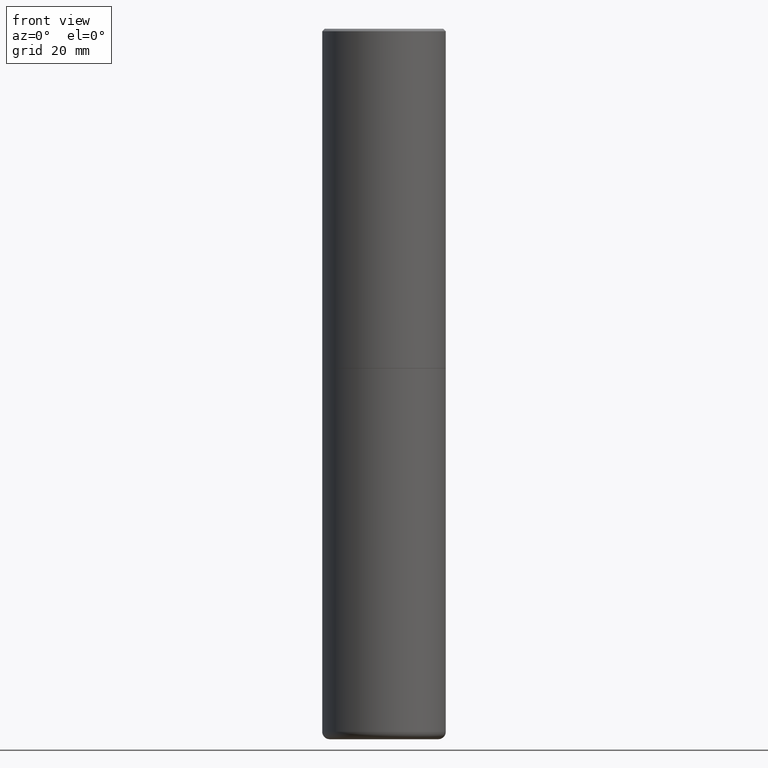
[diagram: clean part render]
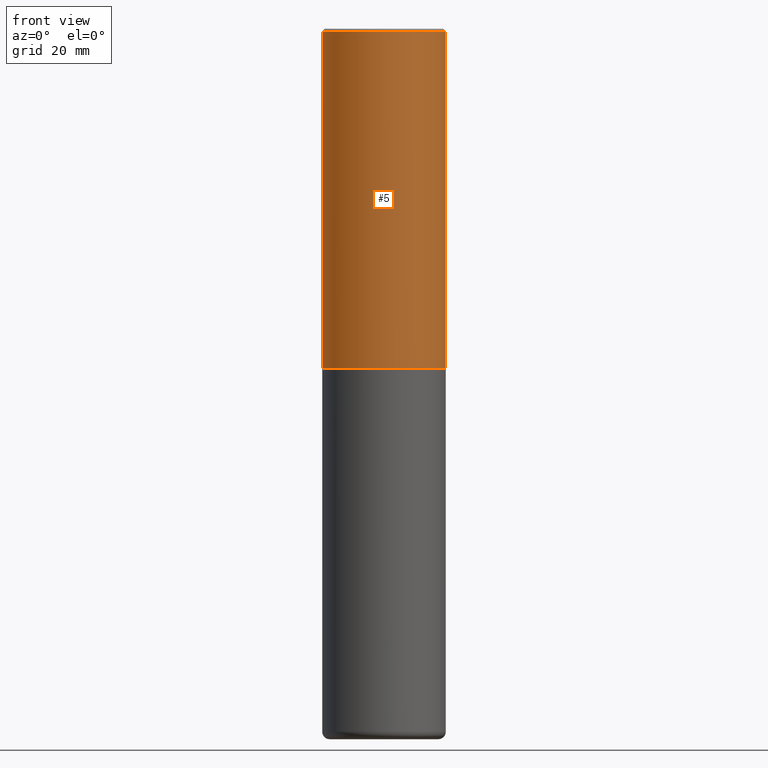
[diagram: same view with one face highlighted and labeled with its STEP entity id]
A machine part, front view. The second image highlights one B-rep face of the part: STEP entity #5.
In plain terms, the highlighted cylindrical surface (partial cylindrical patch) has radius 12.7 mm, axis along (-0, 0, 1).
Its self-contained STEP definition (entity closure, byte-faithful):
#5 = ADVANCED_FACE ( 'NONE', ( #139 ), #133, .T. ) ;
#16 = CARTESIAN_POINT ( 'NONE',  ( 0.000000000000000000, 0.000000000000000000, 0.000000000000000000 ) ) ;
#22 = ORIENTED_EDGE ( 'NONE', *, *, #161, .T. ) ;
#39 = EDGE_CURVE ( 'NONE', #120, #331, #227, .T. ) ;
#42 = CARTESIAN_POINT ( 'NONE',  ( -0.5000000000000003331, -1.281242234827830793E-15, -2.748999999999999666 ) ) ;
#46 = AXIS2_PLACEMENT_3D ( 'NONE', #16, #275, #131 ) ;
#58 = CARTESIAN_POINT ( 'NONE',  ( -0.5000000000000001110, 3.421651712066270452E-15, -0.02000000000000010797 ) ) ;
#78 = AXIS2_PLACEMENT_3D ( 'NONE', #121, #118, #383 ) ;
#93 = CARTESIAN_POINT ( 'NONE',  ( -0.5000000000000002220, 3.552713678800502507E-15, -2.459467545127454012E-29 ) ) ;
#103 = DIRECTION ( 'NONE',  ( -2.445468806185136877E-29, 3.491481338843145188E-15, 1.000000000000000000 ) ) ;
#115 = EDGE_LOOP ( 'NONE', ( #184, #333, #22, #200 ) ) ;
#118 = DIRECTION ( 'NONE',  ( -2.445468806185136597E-29, 3.491481338843145583E-15, 1.000000000000000000 ) ) ;
#120 = VERTEX_POINT ( 'NONE', #42 ) ;
#121 = CARTESIAN_POINT ( 'NONE',  ( 4.890937612370299433E-31, -6.982962677686328587E-17, -0.02000000000000010797 ) ) ;
#131 = DIRECTION ( 'NONE',  ( 1.000000000000000000, -6.982962677686266711E-15, 4.876176775795935793E-29 ) ) ;
#133 = CYLINDRICAL_SURFACE ( 'NONE', #46, 0.5000000000000002220 ) ;
#139 = FACE_OUTER_BOUND ( 'NONE', #115, .T. ) ;
#161 = EDGE_CURVE ( 'NONE', #331, #211, #190, .T. ) ;
#176 = EDGE_CURVE ( 'NONE', #278, #211, #215, .T. ) ;
#184 = ORIENTED_EDGE ( 'NONE', *, *, #325, .F. ) ;
#185 = CARTESIAN_POINT ( 'NONE',  ( 0.5000000000000001110, -3.500078625662629868E-15, -0.02000000000000010797 ) ) ;
#190 = LINE ( 'NONE', #252, #274 ) ;
#200 = ORIENTED_EDGE ( 'NONE', *, *, #176, .F. ) ;
#211 = VERTEX_POINT ( 'NONE', #185 ) ;
#215 = CIRCLE ( 'NONE', #78, 0.5000000000000001110 ) ;
#227 = CIRCLE ( 'NONE', #236, 0.5000000000000003331 ) ;
#230 = DIRECTION ( 'NONE',  ( -2.445468806185136597E-29, 3.491481338843145583E-15, 1.000000000000000000 ) ) ;
#236 = AXIS2_PLACEMENT_3D ( 'NONE', #264, #230, #336 ) ;
#252 = CARTESIAN_POINT ( 'NONE',  ( 0.5000000000000002220, -3.491481338843134933E-15, 2.438088387897969017E-29 ) ) ;
#254 = VECTOR ( 'NONE', #103, 39.37007874015748143 ) ;
#264 = CARTESIAN_POINT ( 'NONE',  ( 6.722593748202938917E-29, -9.598082200479805274E-15, -2.748999999999999666 ) ) ;
#274 = VECTOR ( 'NONE', #279, 39.37007874015748143 ) ;
#275 = DIRECTION ( 'NONE',  ( -2.445468806185136597E-29, 3.491481338843145583E-15, 1.000000000000000000 ) ) ;
#278 = VERTEX_POINT ( 'NONE', #58 ) ;
#279 = DIRECTION ( 'NONE',  ( -2.445468806185136877E-29, 3.491481338843145188E-15, 1.000000000000000000 ) ) ;
#315 = CARTESIAN_POINT ( 'NONE',  ( 0.5000000000000003331, -1.308956353932294179E-14, -2.748999999999999666 ) ) ;
#325 = EDGE_CURVE ( 'NONE', #120, #278, #329, .T. ) ;
#329 = LINE ( 'NONE', #93, #254 ) ;
#331 = VERTEX_POINT ( 'NONE', #315 ) ;
#333 = ORIENTED_EDGE ( 'NONE', *, *, #39, .T. ) ;
#336 = DIRECTION ( 'NONE',  ( 1.000000000000000000, -6.982962677686265922E-15, 0.000000000000000000 ) ) ;
#383 = DIRECTION ( 'NONE',  ( 1.000000000000000000, -6.982962677686265922E-15, 0.000000000000000000 ) ) ;